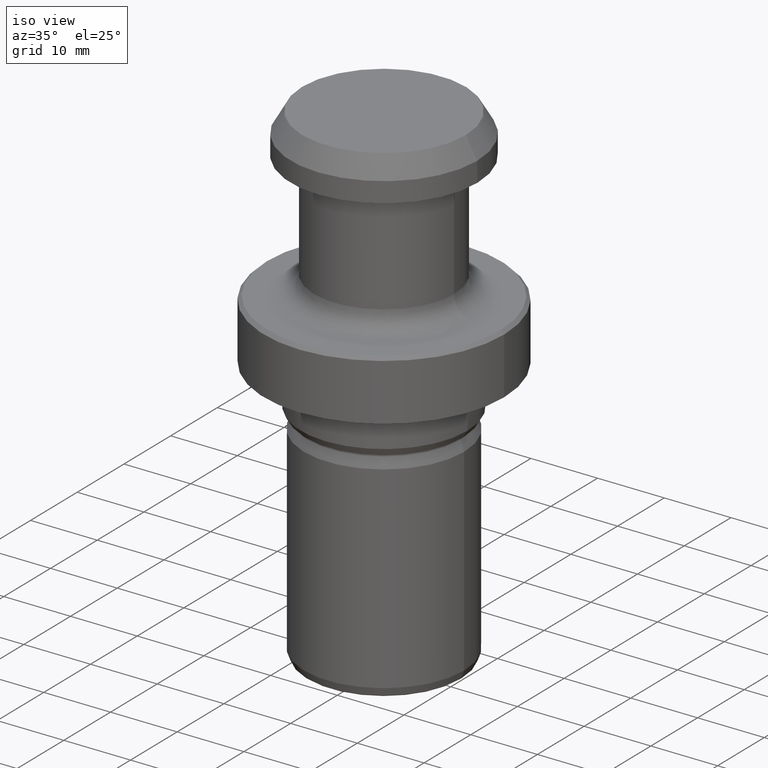
[diagram: clean part render]
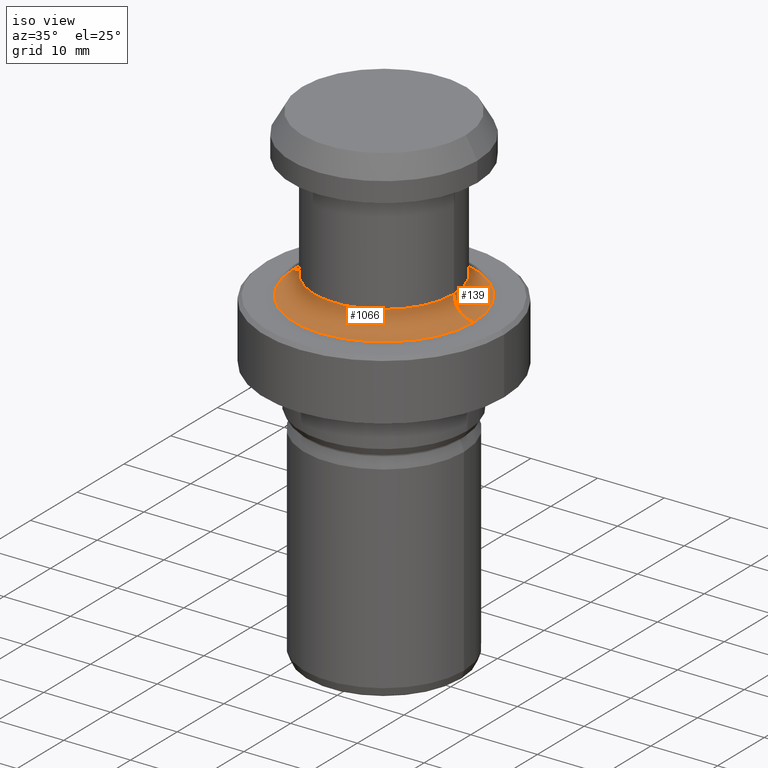
[diagram: same view with one multi-face feature highlighted, each face labeled with its STEP entity id]
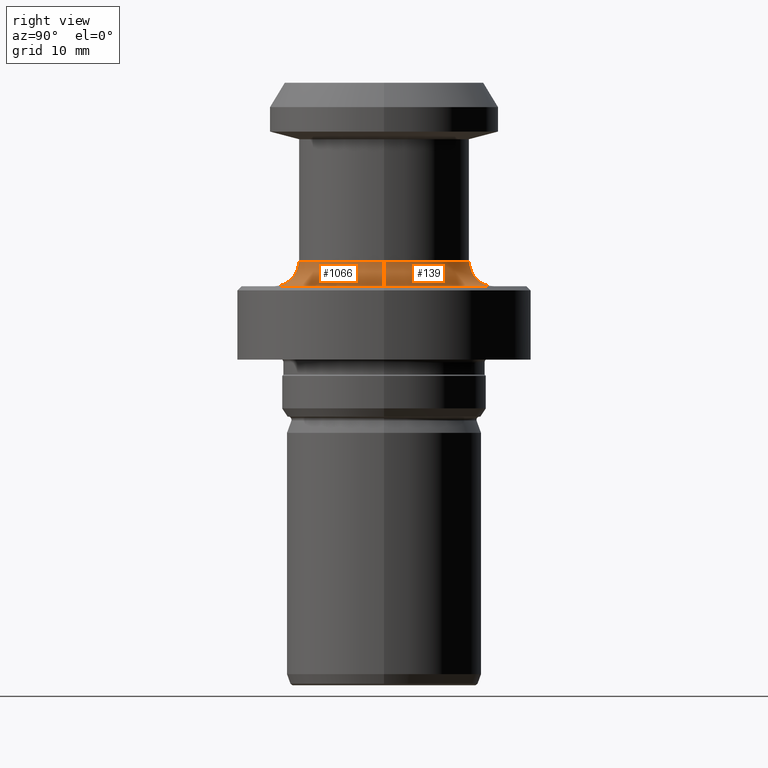
[diagram: same view with one multi-face feature highlighted, each face labeled with its STEP entity id]
A machine part, iso view. The highlighted faces form ONE feature: a constant-radius fillet chain: 2 tangent blend faces with common blend radius 3 mm. The faces share edges in the B-rep.
A second angle (right view) of the same feature is appended — it is thin or edge-on in the first view.
Their STEP definitions:
[1] entity #1066 (Torus):
#21 = DIRECTION ( 'NONE',  ( 0.0000000000000000000, -1.000000000000000000, 0.0000000000000000000 ) ) ;
#112 = DIRECTION ( 'NONE',  ( -1.000000000000000000, 1.224646799147353500E-016, 0.0000000000000000000 ) ) ;
#126 = EDGE_CURVE ( 'NONE', #476, #612, #696, .T. ) ;
#138 = EDGE_CURVE ( 'NONE', #476, #146, #192, .T. ) ;
#146 = VERTEX_POINT ( 'NONE', #401 ) ;
#192 = CIRCLE ( 'NONE', #722, 2.999999999999999100 ) ;
#231 = TOROIDAL_SURFACE ( 'NONE', #798, 13.50000000000000200, 3.000000000000000000 ) ;
#264 = DIRECTION ( 'NONE',  ( 1.000000000000000000, 0.0000000000000000000, 0.0000000000000000000 ) ) ;
#288 = VERTEX_POINT ( 'NONE', #1173 ) ;
#302 = DIRECTION ( 'NONE',  ( -0.0000000000000000000, -0.0000000000000000000, 1.000000000000000000 ) ) ;
#356 = CARTESIAN_POINT ( 'NONE',  ( 0.0000000000000000000, 0.0000000000000000000, -25.00000000000000000 ) ) ;
#390 = CARTESIAN_POINT ( 'NONE',  ( -10.50000000000000000, 1.469576158976823900E-015, -22.00000000000000400 ) ) ;
#401 = CARTESIAN_POINT ( 'NONE',  ( -13.50000000000000200, 1.653273178848927100E-015, -25.00000000000000000 ) ) ;
#439 = ORIENTED_EDGE ( 'NONE', *, *, #126, .F. ) ;
#447 = AXIS2_PLACEMENT_3D ( 'NONE', #356, #904, #264 ) ;
#476 = VERTEX_POINT ( 'NONE', #390 ) ;
#508 = CARTESIAN_POINT ( 'NONE',  ( 0.0000000000000000000, 0.0000000000000000000, -22.00000000000000400 ) ) ;
#612 = VERTEX_POINT ( 'NONE', #1110 ) ;
#696 = CIRCLE ( 'NONE', #741, 10.50000000000000000 ) ;
#720 = ORIENTED_EDGE ( 'NONE', *, *, #138, .T. ) ;
#722 = AXIS2_PLACEMENT_3D ( 'NONE', #1119, #745, #112 ) ;
#741 = AXIS2_PLACEMENT_3D ( 'NONE', #508, #302, #1015 ) ;
#745 = DIRECTION ( 'NONE',  ( 1.224646799147353200E-016, 1.000000000000000000, 0.0000000000000000000 ) ) ;
#753 = CIRCLE ( 'NONE', #447, 13.50000000000000200 ) ;
#798 = AXIS2_PLACEMENT_3D ( 'NONE', #976, #882, #886 ) ;
#826 = DIRECTION ( 'NONE',  ( 0.0000000000000000000, 0.0000000000000000000, -1.000000000000000000 ) ) ;
#844 = ORIENTED_EDGE ( 'NONE', *, *, #872, .T. ) ;
#864 = ORIENTED_EDGE ( 'NONE', *, *, #949, .F. ) ;
#872 = EDGE_CURVE ( 'NONE', #146, #288, #753, .T. ) ;
#882 = DIRECTION ( 'NONE',  ( -0.0000000000000000000, -0.0000000000000000000, 1.000000000000000000 ) ) ;
#886 = DIRECTION ( 'NONE',  ( 1.000000000000000000, 0.0000000000000000000, 0.0000000000000000000 ) ) ;
#904 = DIRECTION ( 'NONE',  ( -0.0000000000000000000, -0.0000000000000000000, 1.000000000000000000 ) ) ;
#949 = EDGE_CURVE ( 'NONE', #612, #288, #1124, .T. ) ;
#976 = CARTESIAN_POINT ( 'NONE',  ( 0.0000000000000000000, 0.0000000000000000000, -22.00000000000000400 ) ) ;
#1015 = DIRECTION ( 'NONE',  ( 1.000000000000000000, 0.0000000000000000000, 0.0000000000000000000 ) ) ;
#1066 = ADVANCED_FACE ( 'NONE', ( #1148 ), #231, .F. ) ;
#1071 = EDGE_LOOP ( 'NONE', ( #439, #720, #844, #864 ) ) ;
#1102 = CARTESIAN_POINT ( 'NONE',  ( 13.50000000000000200, 0.0000000000000000000, -22.00000000000000400 ) ) ;
#1109 = AXIS2_PLACEMENT_3D ( 'NONE', #1102, #21, #826 ) ;
#1110 = CARTESIAN_POINT ( 'NONE',  ( 10.50000000000000000, 0.0000000000000000000, -22.00000000000000400 ) ) ;
#1119 = CARTESIAN_POINT ( 'NONE',  ( -13.50000000000000200, 1.653273178848927100E-015, -22.00000000000000400 ) ) ;
#1124 = CIRCLE ( 'NONE', #1109, 2.999999999999999100 ) ;
#1148 = FACE_OUTER_BOUND ( 'NONE', #1071, .T. ) ;
#1173 = CARTESIAN_POINT ( 'NONE',  ( 13.50000000000000200, 0.0000000000000000000, -25.00000000000000000 ) ) ;
[2] entity #139 (Torus):
#21 = DIRECTION ( 'NONE',  ( 0.0000000000000000000, -1.000000000000000000, 0.0000000000000000000 ) ) ;
#39 = AXIS2_PLACEMENT_3D ( 'NONE', #585, #556, #624 ) ;
#81 = CIRCLE ( 'NONE', #39, 10.50000000000000000 ) ;
#112 = DIRECTION ( 'NONE',  ( -1.000000000000000000, 1.224646799147353500E-016, 0.0000000000000000000 ) ) ;
#138 = EDGE_CURVE ( 'NONE', #476, #146, #192, .T. ) ;
#139 = ADVANCED_FACE ( 'NONE', ( #876 ), #1129, .F. ) ;
#146 = VERTEX_POINT ( 'NONE', #401 ) ;
#192 = CIRCLE ( 'NONE', #722, 2.999999999999999100 ) ;
#256 = CARTESIAN_POINT ( 'NONE',  ( 0.0000000000000000000, 0.0000000000000000000, -25.00000000000000000 ) ) ;
#288 = VERTEX_POINT ( 'NONE', #1173 ) ;
#311 = DIRECTION ( 'NONE',  ( -0.0000000000000000000, -0.0000000000000000000, 1.000000000000000000 ) ) ;
#358 = CIRCLE ( 'NONE', #643, 13.50000000000000200 ) ;
#390 = CARTESIAN_POINT ( 'NONE',  ( -10.50000000000000000, 1.469576158976823900E-015, -22.00000000000000400 ) ) ;
#391 = DIRECTION ( 'NONE',  ( 1.000000000000000000, 0.0000000000000000000, 0.0000000000000000000 ) ) ;
#401 = CARTESIAN_POINT ( 'NONE',  ( -13.50000000000000200, 1.653273178848927100E-015, -25.00000000000000000 ) ) ;
#442 = DIRECTION ( 'NONE',  ( 1.000000000000000000, 0.0000000000000000000, 0.0000000000000000000 ) ) ;
#476 = VERTEX_POINT ( 'NONE', #390 ) ;
#556 = DIRECTION ( 'NONE',  ( -0.0000000000000000000, -0.0000000000000000000, 1.000000000000000000 ) ) ;
#585 = CARTESIAN_POINT ( 'NONE',  ( 0.0000000000000000000, 0.0000000000000000000, -22.00000000000000400 ) ) ;
#612 = VERTEX_POINT ( 'NONE', #1110 ) ;
#617 = ORIENTED_EDGE ( 'NONE', *, *, #850, .T. ) ;
#624 = DIRECTION ( 'NONE',  ( 1.000000000000000000, 0.0000000000000000000, 0.0000000000000000000 ) ) ;
#636 = ORIENTED_EDGE ( 'NONE', *, *, #138, .F. ) ;
#643 = AXIS2_PLACEMENT_3D ( 'NONE', #256, #1062, #442 ) ;
#663 = EDGE_LOOP ( 'NONE', ( #636, #1022, #805, #617 ) ) ;
#697 = AXIS2_PLACEMENT_3D ( 'NONE', #756, #311, #391 ) ;
#722 = AXIS2_PLACEMENT_3D ( 'NONE', #1119, #745, #112 ) ;
#745 = DIRECTION ( 'NONE',  ( 1.224646799147353200E-016, 1.000000000000000000, 0.0000000000000000000 ) ) ;
#756 = CARTESIAN_POINT ( 'NONE',  ( 0.0000000000000000000, 0.0000000000000000000, -22.00000000000000400 ) ) ;
#805 = ORIENTED_EDGE ( 'NONE', *, *, #949, .T. ) ;
#826 = DIRECTION ( 'NONE',  ( 0.0000000000000000000, 0.0000000000000000000, -1.000000000000000000 ) ) ;
#850 = EDGE_CURVE ( 'NONE', #288, #146, #358, .T. ) ;
#856 = EDGE_CURVE ( 'NONE', #612, #476, #81, .T. ) ;
#876 = FACE_OUTER_BOUND ( 'NONE', #663, .T. ) ;
#949 = EDGE_CURVE ( 'NONE', #612, #288, #1124, .T. ) ;
#1022 = ORIENTED_EDGE ( 'NONE', *, *, #856, .F. ) ;
#1062 = DIRECTION ( 'NONE',  ( -0.0000000000000000000, -0.0000000000000000000, 1.000000000000000000 ) ) ;
#1102 = CARTESIAN_POINT ( 'NONE',  ( 13.50000000000000200, 0.0000000000000000000, -22.00000000000000400 ) ) ;
#1109 = AXIS2_PLACEMENT_3D ( 'NONE', #1102, #21, #826 ) ;
#1110 = CARTESIAN_POINT ( 'NONE',  ( 10.50000000000000000, 0.0000000000000000000, -22.00000000000000400 ) ) ;
#1119 = CARTESIAN_POINT ( 'NONE',  ( -13.50000000000000200, 1.653273178848927100E-015, -22.00000000000000400 ) ) ;
#1124 = CIRCLE ( 'NONE', #1109, 2.999999999999999100 ) ;
#1129 = TOROIDAL_SURFACE ( 'NONE', #697, 13.50000000000000200, 3.000000000000000000 ) ;
#1173 = CARTESIAN_POINT ( 'NONE',  ( 13.50000000000000200, 0.0000000000000000000, -25.00000000000000000 ) ) ;